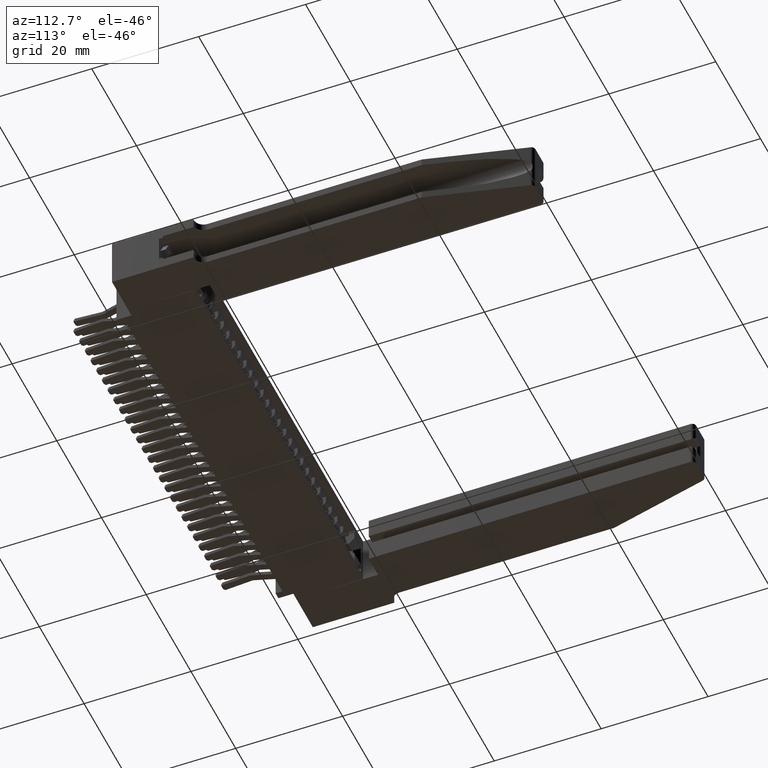
[diagram: clean part render]
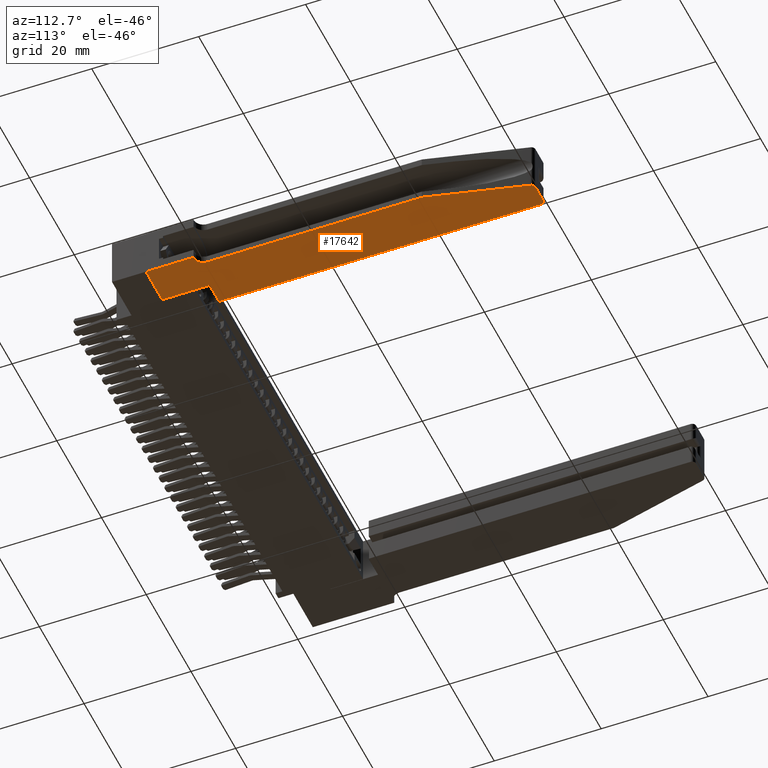
[diagram: same view with one face highlighted and labeled with its STEP entity id]
A machine part, auxiliary view. The second image highlights one B-rep face of the part: STEP entity #17642.
In plain terms, the highlighted planar face has unit normal (-0, -0, -1).
Its self-contained STEP definition (entity closure, byte-faithful):
#172 = CARTESIAN_POINT ( 'NONE',  ( 0.005500000000000255600, 0.4199999999999999800, 0.3700000000000001100 ) ) ;
#543 = VERTEX_POINT ( 'NONE', #25874 ) ;
#944 = AXIS2_PLACEMENT_3D ( 'NONE', #3409, #18677, #5623 ) ;
#1533 = CARTESIAN_POINT ( 'NONE',  ( 0.2839991909279190300, 2.750000000000000000, 0.3700000000000001100 ) ) ;
#1546 = VERTEX_POINT ( 'NONE', #22237 ) ;
#1889 = ORIENTED_EDGE ( 'NONE', *, *, #19033, .T. ) ;
#2330 = VERTEX_POINT ( 'NONE', #20899 ) ;
#2404 = VECTOR ( 'NONE', #26845, 39.37007874015748100 ) ;
#2435 = DIRECTION ( 'NONE',  ( -1.000000000000000000, 0.0000000000000000000, 0.0000000000000000000 ) ) ;
#2438 = VERTEX_POINT ( 'NONE', #11753 ) ;
#2574 = EDGE_CURVE ( 'NONE', #1546, #6635, #23174, .T. ) ;
#2728 = EDGE_CURVE ( 'NONE', #543, #5955, #8266, .T. ) ;
#2808 = CARTESIAN_POINT ( 'NONE',  ( 0.2548722146876835600, 2.727184654139257700, 0.3700000000000000000 ) ) ;
#2919 = CARTESIAN_POINT ( 'NONE',  ( 0.4505000000000000100, 0.3499999999999999800, 0.3700000000000001100 ) ) ;
#3073 = VECTOR ( 'NONE', #19639, 39.37007874015748100 ) ;
#3178 = CARTESIAN_POINT ( 'NONE',  ( 0.0000000000000000000, 0.0000000000000000000, 0.3699999999999999400 ) ) ;
#3303 = ORIENTED_EDGE ( 'NONE', *, *, #10800, .T. ) ;
#3376 = AXIS2_PLACEMENT_3D ( 'NONE', #172, #15549, #2435 ) ;
#3409 = CARTESIAN_POINT ( 'NONE',  ( 0.2839991909279190300, 2.719999999999999300, 0.3700000000000001100 ) ) ;
#3512 = CARTESIAN_POINT ( 'NONE',  ( 0.0000000000000000000, 0.3499999999999999800, 0.3700000000000001100 ) ) ;
#3583 = VERTEX_POINT ( 'NONE', #7039 ) ;
#4022 = CARTESIAN_POINT ( 'NONE',  ( 0.4205000000000000400, 2.719999999999999300, 0.3700000000000000000 ) ) ;
#4331 = FACE_OUTER_BOUND ( 'NONE', #7601, .T. ) ;
#4649 = ORIENTED_EDGE ( 'NONE', *, *, #18619, .T. ) ;
#4691 = LINE ( 'NONE', #2919, #9893 ) ;
#5174 = DIRECTION ( 'NONE',  ( 1.241749088029210900E-016, -1.000000000000000000, -5.916456789157588500E-031 ) ) ;
#5251 = DIRECTION ( 'NONE',  ( 5.612000012723082900E-032, 1.000000000000000000, 5.916456789157588500E-031 ) ) ;
#5321 = LINE ( 'NONE', #18429, #21319 ) ;
#5623 = DIRECTION ( 'NONE',  ( 1.000000000000000000, 0.0000000000000000000, 0.0000000000000000000 ) ) ;
#5661 = VERTEX_POINT ( 'NONE', #3178 ) ;
#5727 = DIRECTION ( 'NONE',  ( 1.000000000000000000, 5.612000012723089400E-032, 0.0000000000000000000 ) ) ;
#5955 = VERTEX_POINT ( 'NONE', #17457 ) ;
#6043 = ORIENTED_EDGE ( 'NONE', *, *, #12775, .T. ) ;
#6220 = DIRECTION ( 'NONE',  ( 1.000000000000000000, 0.0000000000000000000, 0.0000000000000000000 ) ) ;
#6365 = ORIENTED_EDGE ( 'NONE', *, *, #14104, .T. ) ;
#6500 = LINE ( 'NONE', #14838, #16072 ) ;
#6635 = VERTEX_POINT ( 'NONE', #1533 ) ;
#7039 = CARTESIAN_POINT ( 'NONE',  ( 0.2864999999999998100, 0.3499999999999999800, 0.3699999999999999400 ) ) ;
#7391 = VERTEX_POINT ( 'NONE', #12630 ) ;
#7601 = EDGE_LOOP ( 'NONE', ( #15943, #17273, #6365, #24386, #1889, #14245, #25726, #3303, #4649, #22042, #6043, #23381 ) ) ;
#7617 = DIRECTION ( 'NONE',  ( -0.2394884713086027600, -0.9708992080078490100, -5.916456789157588500E-031 ) ) ;
#7735 = CARTESIAN_POINT ( 'NONE',  ( 0.2605000000000001200, 2.750000000000000000, 0.3700000000000000000 ) ) ;
#8266 = LINE ( 'NONE', #10211, #3073 ) ;
#8807 = VECTOR ( 'NONE', #5251, 39.37007874015748100 ) ;
#8830 = VECTOR ( 'NONE', #5174, 39.37007874015748100 ) ;
#9356 = DIRECTION ( 'NONE',  ( -5.612000012723082900E-032, -1.000000000000000000, -5.916456789157588500E-031 ) ) ;
#9585 = DIRECTION ( 'NONE',  ( -1.000000000000000000, -5.612000012723089400E-032, 0.0000000000000000000 ) ) ;
#9788 = EDGE_CURVE ( 'NONE', #23774, #1546, #19719, .T. ) ;
#9893 = VECTOR ( 'NONE', #24714, 39.37007874015748100 ) ;
#10211 = CARTESIAN_POINT ( 'NONE',  ( 0.07550000000000033100, 0.3499999999999999800, 0.3700000000000000000 ) ) ;
#10800 = EDGE_CURVE ( 'NONE', #5661, #7391, #14070, .T. ) ;
#11485 = CIRCLE ( 'NONE', #3376, 0.07000000000000000700 ) ;
#11753 = CARTESIAN_POINT ( 'NONE',  ( 0.4505000000000000100, 0.3499999999999999800, 0.3700000000000001100 ) ) ;
#12630 = CARTESIAN_POINT ( 'NONE',  ( 0.2864999999999998100, 0.0000000000000000000, 0.3700000000000000000 ) ) ;
#12720 = VERTEX_POINT ( 'NONE', #22367 ) ;
#12775 = EDGE_CURVE ( 'NONE', #2438, #23774, #4691, .T. ) ;
#14070 = LINE ( 'NONE', #22533, #2404 ) ;
#14104 = EDGE_CURVE ( 'NONE', #22249, #12720, #5321, .T. ) ;
#14245 = ORIENTED_EDGE ( 'NONE', *, *, #2728, .T. ) ;
#14545 = LINE ( 'NONE', #24736, #8807 ) ;
#14838 = CARTESIAN_POINT ( 'NONE',  ( 0.4505000000000000100, 0.3499999999999999800, 0.3700000000000001100 ) ) ;
#15060 = EDGE_CURVE ( 'NONE', #5955, #5661, #27334, .T. ) ;
#15268 = LINE ( 'NONE', #22592, #8830 ) ;
#15549 = DIRECTION ( 'NONE',  ( 0.0000000000000000000, -5.916456789157588500E-031, -1.000000000000000000 ) ) ;
#15943 = ORIENTED_EDGE ( 'NONE', *, *, #2574, .T. ) ;
#16072 = VECTOR ( 'NONE', #21468, 39.37007874015748100 ) ;
#16572 = VECTOR ( 'NONE', #9356, 39.37007874015748100 ) ;
#16587 = PLANE ( 'NONE',  #22140 ) ;
#17273 = ORIENTED_EDGE ( 'NONE', *, *, #26777, .T. ) ;
#17422 = VECTOR ( 'NONE', #9585, 39.37007874015748100 ) ;
#17457 = CARTESIAN_POINT ( 'NONE',  ( 0.0000000000000000000, 0.3499999999999999800, 0.3700000000000001100 ) ) ;
#17642 = ADVANCED_FACE ( 'NONE', ( #4331 ), #16587, .T. ) ;
#18137 = EDGE_CURVE ( 'NONE', #12720, #2330, #15268, .T. ) ;
#18429 = CARTESIAN_POINT ( 'NONE',  ( 0.07550000000000033100, 1.999999999999999300, 0.3699999999999999400 ) ) ;
#18619 = EDGE_CURVE ( 'NONE', #7391, #3583, #14545, .T. ) ;
#18677 = DIRECTION ( 'NONE',  ( 0.0000000000000000000, 5.916456789157588500E-031, 1.000000000000000000 ) ) ;
#18781 = DIRECTION ( 'NONE',  ( -3.320315557602799600E-062, 5.916456789157588500E-031, 1.000000000000000000 ) ) ;
#19033 = EDGE_CURVE ( 'NONE', #2330, #543, #11485, .T. ) ;
#19275 = DIRECTION ( 'NONE',  ( 0.0000000000000000000, 5.916456789157588500E-031, 1.000000000000000000 ) ) ;
#19639 = DIRECTION ( 'NONE',  ( -1.000000000000000000, -5.612000012723089400E-032, 0.0000000000000000000 ) ) ;
#19719 = CIRCLE ( 'NONE', #25278, 0.03000000000000002300 ) ;
#20275 = CARTESIAN_POINT ( 'NONE',  ( 0.4505000000000000100, 2.719999999999999300, 0.3700000000000000000 ) ) ;
#20899 = CARTESIAN_POINT ( 'NONE',  ( 0.07550000000000033100, 0.4199999999999999800, 0.3700000000000000000 ) ) ;
#21319 = VECTOR ( 'NONE', #7617, 39.37007874015748100 ) ;
#21468 = DIRECTION ( 'NONE',  ( 1.000000000000000000, 5.612000012723089400E-032, 0.0000000000000000000 ) ) ;
#22042 = ORIENTED_EDGE ( 'NONE', *, *, #22595, .T. ) ;
#22140 = AXIS2_PLACEMENT_3D ( 'NONE', #3512, #18781, #5727 ) ;
#22237 = CARTESIAN_POINT ( 'NONE',  ( 0.4205000000000000400, 2.750000000000000000, 0.3700000000000000000 ) ) ;
#22249 = VERTEX_POINT ( 'NONE', #2808 ) ;
#22310 = CARTESIAN_POINT ( 'NONE',  ( 0.0000000000000000000, 0.0000000000000000000, 0.3699999999999999400 ) ) ;
#22367 = CARTESIAN_POINT ( 'NONE',  ( 0.07550000000000033100, 1.999999999999999300, 0.3699999999999999400 ) ) ;
#22533 = CARTESIAN_POINT ( 'NONE',  ( 0.0000000000000000000, 0.0000000000000000000, 0.3699999999999999400 ) ) ;
#22592 = CARTESIAN_POINT ( 'NONE',  ( 0.07550000000000033100, 1.999999999999999300, 0.3699999999999999400 ) ) ;
#22595 = EDGE_CURVE ( 'NONE', #3583, #2438, #6500, .T. ) ;
#23174 = LINE ( 'NONE', #7735, #17422 ) ;
#23381 = ORIENTED_EDGE ( 'NONE', *, *, #9788, .T. ) ;
#23774 = VERTEX_POINT ( 'NONE', #20275 ) ;
#24386 = ORIENTED_EDGE ( 'NONE', *, *, #18137, .T. ) ;
#24714 = DIRECTION ( 'NONE',  ( 5.612000012723082900E-032, 1.000000000000000000, 5.916456789157588500E-031 ) ) ;
#24736 = CARTESIAN_POINT ( 'NONE',  ( 0.2864999999999998100, 0.3499999999999999800, 0.3699999999999999400 ) ) ;
#25278 = AXIS2_PLACEMENT_3D ( 'NONE', #4022, #19275, #6220 ) ;
#25726 = ORIENTED_EDGE ( 'NONE', *, *, #15060, .T. ) ;
#25874 = CARTESIAN_POINT ( 'NONE',  ( 0.005500000000000255600, 0.3499999999999999800, 0.3700000000000001100 ) ) ;
#26777 = EDGE_CURVE ( 'NONE', #6635, #22249, #28115, .T. ) ;
#26845 = DIRECTION ( 'NONE',  ( 1.000000000000000000, 8.258562440595775800E-032, 0.0000000000000000000 ) ) ;
#27334 = LINE ( 'NONE', #22310, #16572 ) ;
#28115 = CIRCLE ( 'NONE', #944, 0.03000000000000002300 ) ;